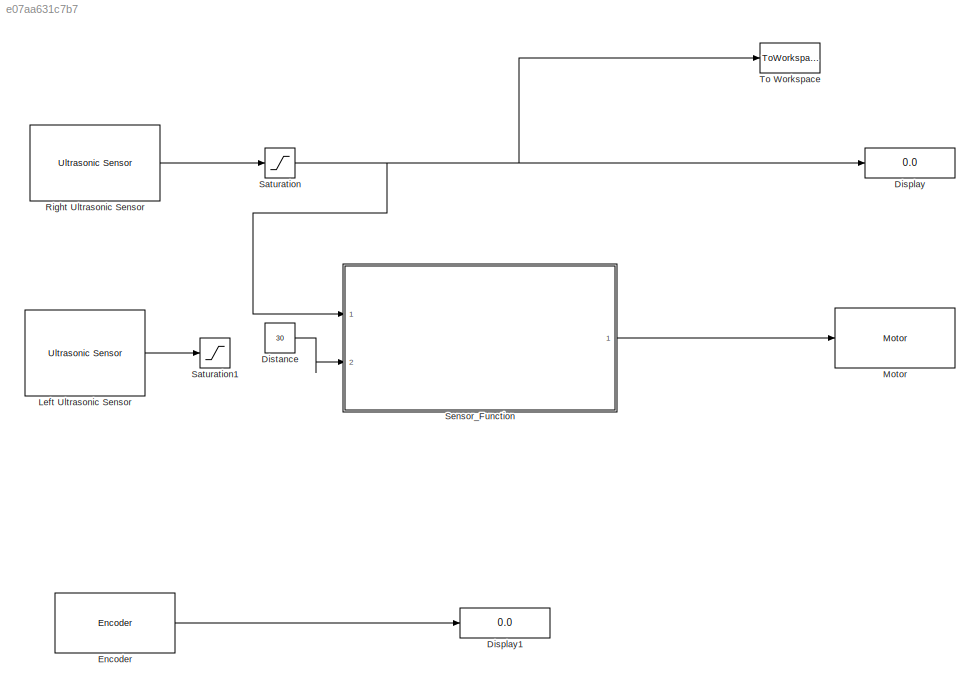
MODEL slx_e07aa631c7b7
KIND model
CONFIG AbsTol = auto
CONFIG EnableMultiTasking = on
CONFIG FixedStep = auto
CONFIG MaxStep = auto
CONFIG MinStep = auto
CONFIG RelTol = 1e-3
CONFIG SampleTimeConstraint = Unconstrained
CONFIG Solver = FixedStepAuto
CONFIG SolverName = FixedStepAuto
CONFIG StartTime = 0.0
CONFIG StopTime = inf
BLOCK [Display] Display
  Decimation = 1
  Format = decimal (Stored Integer)
  Ports = [1]
BLOCK [Display] Display1
  Decimation = 1
  Format = decimal (Stored Integer)
  Ports = [1]
BLOCK [Constant] Distance
  Value = 30
BLOCK [Reference] Encoder  REF=legoev3lib/Encoder
  Ports = [1, 1]
  SourceBlock = legoev3lib/Encoder
  SourceType = LEGO MINDSTORMS EV3 Encoder
BLOCK [Reference] Left Ultrasonic Sensor  REF=legoev3lib/Ultrasonic Sensor
  Ports = [0, 1]
  SourceBlock = legoev3lib/Ultrasonic Sensor
  SourceType = LEGO MINDSTORMS EV3 Ultrasonic Sensor
BLOCK [Reference] Motor  REF=legoev3lib/Motor
  Ports = [1]
  SourceBlock = legoev3lib/Motor
  SourceType = LEGO MINDSTORMS EV3 Motor
BLOCK [Reference] Right Ultrasonic Sensor  REF=legoev3lib/Ultrasonic Sensor
  Ports = [0, 1]
  SourceBlock = legoev3lib/Ultrasonic Sensor
  SourceType = LEGO MINDSTORMS EV3 Ultrasonic Sensor
BLOCK [Saturate] Saturation
  InputPortMap = u0
  LowerLimit = 3
  Ports = [1, 1]
  UpperLimit = 100
BLOCK [Saturate] Saturation1
  InputPortMap = u0
  LowerLimit = 3
  Ports = [1, 1]
  UpperLimit = 100
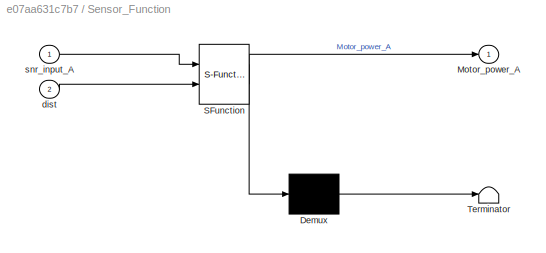
BLOCK [SubSystem] Sensor_Function
  ErrorFcn = Stateflow.Translate.translate
  PermitHierarchicalResolution = ExplicitOnly
  Ports = [2, 1]
  RequestExecContextInheritance = off
  SFBlockType = MATLAB Function
  TreatAsAtomicUnit = on
  Variant = off
BLOCK [Demux] Sensor_Function/ Demux 
  Outputs = 1
  Ports = [1, 1]
BLOCK [S-Function] Sensor_Function/ SFunction 
  EnableBusSupport = off
  FunctionName = sf_sfun
  PortCounts = [2 2]
  Ports = [2, 2]
  SFcnIsStateOwnerBlock = off
  SFunctionDeploymentMode = off
  Tag = Stateflow S-Function testbench_sensor_distance 2
BLOCK [Terminator] Sensor_Function/ Terminator 
BLOCK [Outport] Sensor_Function/Motor_power_A
  IconDisplay = Port number
BLOCK [Inport] Sensor_Function/dist
  IconDisplay = Port number
  Port = 2
BLOCK [Inport] Sensor_Function/snr_input_A
  IconDisplay = Port number
BLOCK [ToWorkspace] To Workspace
  FixptAsFi = on
  MaxDataPoints = inf
  Ports = [1]
  SampleTime = -1
  Save2DSignal = 3-D array (concatenate along third dimension)
  VariableName = snr_input
LINE Distance:1 -> Sensor_Function:2
LINE Encoder:1 -> Display1:1
LINE Left Ultrasonic Sensor:1 -> Saturation1:1
LINE Right Ultrasonic Sensor:1 -> Saturation:1
NET Saturation:1 -> Display:1, Sensor_Function:1, To Workspace:1
LINE Sensor_Function:1 -> Motor:1
note: NET lines group one-source signal fan-out (src -> all destinations, sorted); 1:1 wires keep LINE
CHART Sensor_Function states=1 transitions=1
  STATE_LABEL 'eML_blk_kernel()'
  STATE_LABEL 'SCRIPT:\nfunction Motor_power_A  = fcn(snr_input_A,dist)\n%#codegen\nwhile 1\n   if (snr_input_A<=dist)\n      Motor_power_A=100;\n   else\n      Motor_power_A=0;\n   end\n   break;\nend\n% pause(10);\n% while 1 \n%     if (encA<=850)\n%         Motor_power_A=50;\n%     else\n%         Motor_power_A=0;\n%     end\n%     break;\nend'
